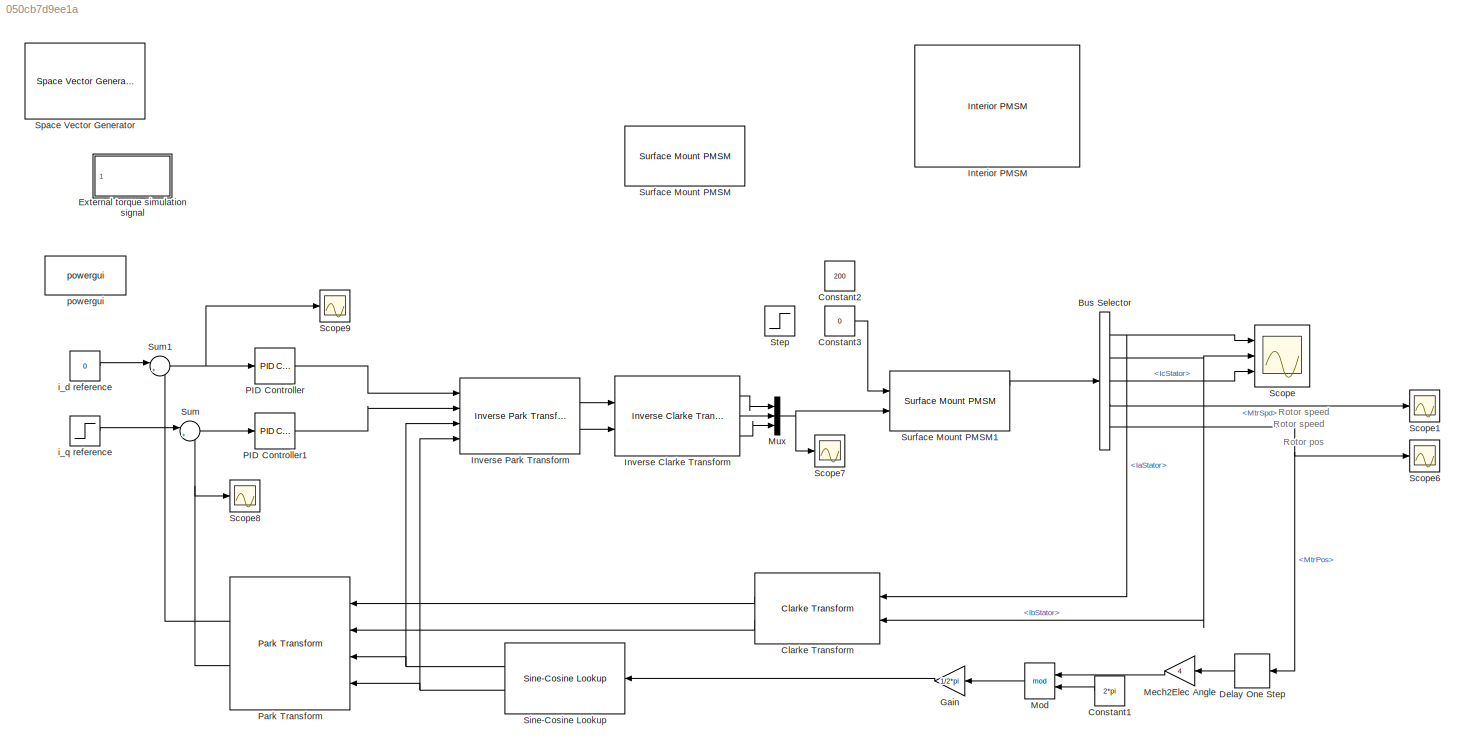
MODEL slx_050cb7d9ee1a
KIND model
CONFIG AbsTol = auto
CONFIG EnableMultiTasking = off
CONFIG FixedStep = 1e-4
CONFIG MaxStep = auto
CONFIG MinStep = auto
CONFIG RelTol = 1e-3
CONFIG SampleTimeConstraint = Unconstrained
CONFIG SolverName = FixedStepAuto
CONFIG StartTime = 0.0
CONFIG StopTime = 5
BLOCK [BusSelector] Bus Selector
  OutputSignals = IaStator,IbStator,IcStator,MtrSpd,MtrPos
  Ports = [1, 5]
BLOCK [Reference] Clarke Transform  REF=mcbcontrolslib/Clarke Transform
  NameLocation = top
  Ports = [2, 2]
  SourceBlock = mcbcontrolslib/Clarke Transform
  SourceProductBaseCode = MT
  SourceType = Clarke Transform
BLOCK [Constant] Constant1
  NameLocation = top
  Value = 2*pi
BLOCK [Constant] Constant2
  Value = 200
BLOCK [Constant] Constant3
  Value = 0
BLOCK [Delay] Delay One Step
  DelayLength = 1
  InputPortMap = u0
  NameLocation = top
  Ports = [1, 1]
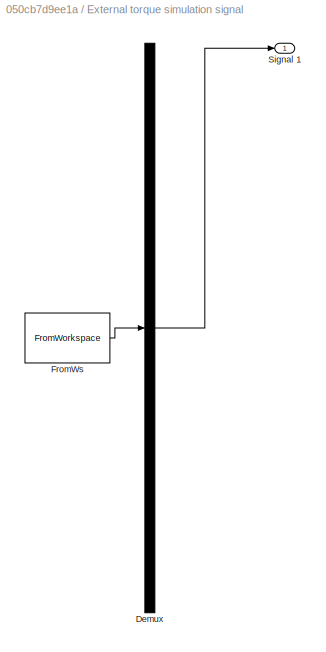
BLOCK [SubSystem] External torque simulation signal
  ClipboardFcn = sigbuilder_block('clipboard');
  CloseFcn = sigbuilder_block('close');
  ContinueFcn = sigbuilder_block('continue')
  CopyFcn = sigbuilder_block('copy');
  DeleteFcn = sigbuilder_block('delete');
  LoadFcn = sigbuilder_block('load');
  MaskHideContents = on
  ModelCloseFcn = sigbuilder_block('modelClose');
  NameChangeFcn = sigbuilder_block('namechange');
  OpenFcn = sigbuilder_block('open',[88.5 525 777 491.25 ]);
  PauseFcn = sigbuilder_block('pause')
  Ports = [0, 1]
  PreSaveFcn = sigbuilder_block('preSave');
  RequestExecContextInheritance = off
  StartFcn = sigbuilder_block('start');
  StopFcn = sigbuilder_block('stop');
  Tag = STV Subsys
BLOCK [Demux] External torque simulation signal/Demux
  DisplayOption = none
  Outputs = 1
  Ports = [1, 1]
  Tag = STV Demux
BLOCK [FromWorkspace] External torque simulation signal/FromWs
  Tag = STV FromWs
  VariableName = tuvar
BLOCK [Outport] External torque simulation signal/Signal 1
  Tag = STV Outport
BLOCK [Gain] Gain
  Gain = 1/2*pi
  NameLocation = top
BLOCK [Reference] Interior PMSM  REF=autolibpmsminterior/Interior PMSM
  Ports = [2, 3]
  SourceBlock = autolibpmsminterior/Interior PMSM
  SourceProductBaseCode = PW,MT,UV,VE,VP
  SourceType = Interior PMSM
BLOCK [Reference] Inverse Clarke Transform  REF=mcbcontrolslib/Inverse Clarke Transform
  Ports = [2, 3]
  SourceBlock = mcbcontrolslib/Inverse Clarke Transform
  SourceProductBaseCode = MT
  SourceType = Inverse Clarke Transform
BLOCK [Reference] Inverse Park Transform  REF=mcbcontrolslib/Inverse Park Transform
  Ports = [4, 2]
  SourceBlock = mcbcontrolslib/Inverse Park Transform
  SourceProductBaseCode = MT
  SourceType = Inverse Park Transform
BLOCK [Gain] Mech2Elec Angle
  Gain = 4
  NameLocation = top
BLOCK [Math] Mod
  NameLocation = top
  Operator = mod
  Ports = [2, 1]
BLOCK [Mux] Mux
  DisplayOption = bar
  Inputs = 3
  Ports = [3, 1]
BLOCK [Reference] PID Controller  REF=pid_lib/PID Controller
  Ports = [1, 1]
  SourceBlock = pid_lib/PID Controller
  SourceProductBaseCode = SL
  SourceType = PID 1dof
BLOCK [Reference] PID Controller1  REF=pid_lib/PID Controller
  Ports = [1, 1]
  SourceBlock = pid_lib/PID Controller
  SourceProductBaseCode = SL
  SourceType = PID 1dof
BLOCK [Reference] Park Transform  REF=mcbcontrolslib/Park Transform
  NameLocation = top
  Ports = [4, 2]
  SourceBlock = mcbcontrolslib/Park Transform
  SourceProductBaseCode = MT
  SourceType = Park Transform
BLOCK [Scope] Scope
  Floating = off
  NumInputPorts = 3
  Ports = [3]
  ScopeSpecificationString = Simulink.scopes.TimeScopeBlockCfg('CurrentConfiguration', extmgr.ConfigurationSet(extmgr.Configuration('Core','General UI',true),extmgr.Configuration('Core','Source UI',true),extmgr.Configuration('Sources','WiredSimulink',true),extmgr.Configuration('Visuals','Time Domain',true,'SerializedDisplays',{struct('MinYLimReal','-5.90803','MaxYLimReal','4.94568','YLabelReal','','MinYLimMag','0.00000','MaxY...<+1429ch>
BLOCK [Scope] Scope1
  Floating = off
  NumInputPorts = 1
  Ports = [1]
  ScopeSpecificationString = Simulink.scopes.TimeScopeBlockCfg('CurrentConfiguration', extmgr.ConfigurationSet(extmgr.Configuration('Core','General UI',true),extmgr.Configuration('Core','Source UI',true),extmgr.Configuration('Sources','WiredSimulink',true,'DataLoggingVariableName','ScopeData1'),extmgr.Configuration('Visuals','Time Domain',true,'PlotType','Line','SerializedDisplays',{struct('MinYLimReal','-27.53753','MaxYLimRe...<+1552ch>
BLOCK [Scope] Scope6
  Floating = off
  NumInputPorts = 1
  Ports = [1]
  ScopeSpecificationString = Simulink.scopes.TimeScopeBlockCfg('CurrentConfiguration', extmgr.ConfigurationSet(extmgr.Configuration('Core','General UI',true),extmgr.Configuration('Core','Source UI',true),extmgr.Configuration('Sources','WiredSimulink',true,'DataLoggingVariableName','ScopeData1'),extmgr.Configuration('Visuals','Time Domain',true,'SerializedDisplays',{struct('MinYLimReal','-3.92644','MaxYLimReal','3.92675','YLab...<+1441ch>
BLOCK [Scope] Scope7
  Floating = off
  NumInputPorts = 1
  Ports = [1]
  ScopeSpecificationString = Simulink.scopes.TimeScopeBlockCfg('CurrentConfiguration', extmgr.ConfigurationSet(extmgr.Configuration('Core','General UI',true),extmgr.Configuration('Core','Source UI',true),extmgr.Configuration('Sources','WiredSimulink',true,'DataLoggingVariableName','ScopeData2'),extmgr.Configuration('Visuals','Time Domain',true,'SerializedDisplays',{struct('MinYLimReal','-2.18714','MaxYLimReal','2.05685','YLab...<+1462ch>
BLOCK [Scope] Scope8
  Floating = off
  NumInputPorts = 1
  Ports = [1]
  ScopeSpecificationString = Simulink.scopes.TimeScopeBlockCfg('CurrentConfiguration', extmgr.ConfigurationSet(extmgr.Configuration('Core','General UI',true),extmgr.Configuration('Core','Source UI',true),extmgr.Configuration('Sources','WiredSimulink',true,'DataLoggingVariableName','ScopeData3'),extmgr.Configuration('Visuals','Time Domain',true,'SerializedDisplays',{struct('MinYLimReal','4.74311','MaxYLimReal','4.7776','YLabel...<+1388ch>
BLOCK [Scope] Scope9
  Floating = off
  NumInputPorts = 1
  Ports = [1]
  ScopeSpecificationString = Simulink.scopes.TimeScopeBlockCfg('CurrentConfiguration', extmgr.ConfigurationSet(extmgr.Configuration('Core','General UI',true),extmgr.Configuration('Core','Source UI',true),extmgr.Configuration('Sources','WiredSimulink',true,'DataLoggingVariableName','ScopeData1'),extmgr.Configuration('Visuals','Time Domain',true,'SerializedDisplays',{struct('MinYLimReal','-8.84978','MaxYLimReal','9.40625','YLab...<+1412ch>
BLOCK [Reference] Sine-Cosine Lookup  REF=mcbcontrolslib/Sine-Cosine Lookup
  NameLocation = top
  Ports = [1, 2]
  SourceBlock = mcbcontrolslib/Sine-Cosine Lookup
  SourceProductBaseCode = MT
  SourceType = Sine-Cosine Lookup
BLOCK [Reference] Space Vector Generator  REF=mcbcontrolslib/Space Vector Generator
  Ports = [2, 3]
  SourceBlock = mcbcontrolslib/Space Vector Generator
  SourceProductBaseCode = MT
  SourceType = Space Vector Generator
BLOCK [Step] Step
  After = 0
  SampleTime = 0
  Time = 0.1
BLOCK [Sum] Sum
  Inputs = |+-
  Ports = [2, 1]
BLOCK [Sum] Sum1
  Inputs = |+-
  Ports = [2, 1]
BLOCK [Reference] Surface Mount PMSM  REF=autolibpmsmexterior/Surface Mount PMSM
  Ports = [2, 3]
  SourceBlock = autolibpmsmexterior/Surface Mount PMSM
  SourceProductBaseCode = PW,MT,UV,VE,VP
  SourceType = Surface Mount PMSM
BLOCK [Reference] Surface Mount PMSM1  REF=autolibpmsmexterior/Surface Mount PMSM
  Ports = [2, 3]
  SourceBlock = autolibpmsmexterior/Surface Mount PMSM
  SourceProductBaseCode = PW,MT,UV,VE,VP
  SourceType = Surface Mount PMSM
BLOCK [Constant] i_d reference
  Value = 0
BLOCK [Step] i_q reference
  After = 5
  OutDataTypeStr = Inherit: Inherit via back propagation
  SampleTime = 0
  Time = 0.1
BLOCK [Reference] powergui  REF=powerlib/powergui
  Ports = []
  Priority = 1
  SourceBlock = powerlib/powergui
  SourceProductBaseCode = PS
  SourceType = PSB option menu block
ANNOTATION (root): Rotor pos
ANNOTATION (root): Rotor speed
NET Bus Selector:1 -> Clarke Transform:1, Scope:1
NET Bus Selector:2 -> Clarke Transform:2, Scope:2
LINE Bus Selector:3 -> Scope:3
LINE Bus Selector:4 -> Scope1:1
NET Bus Selector:5 -> Delay One Step:1, Scope6:1
LINE Clarke Transform:1 -> Park Transform:1
LINE Clarke Transform:2 -> Park Transform:2
LINE Constant1:1 -> Mod:2
LINE Constant3:1 -> Surface Mount PMSM1:1
LINE Delay One Step:1 -> Mech2Elec Angle:1
LINE External torque simulation signal/Demux:1 -> External torque simulation signal/Signal 1:1
LINE External torque simulation signal/FromWs:1 -> External torque simulation signal/Demux:1
LINE Gain:1 -> Sine-Cosine Lookup:1
LINE Inverse Clarke Transform:1 -> Mux:1
LINE Inverse Clarke Transform:2 -> Mux:2
LINE Inverse Clarke Transform:3 -> Mux:3
LINE Inverse Park Transform:1 -> Inverse Clarke Transform:1
LINE Inverse Park Transform:2 -> Inverse Clarke Transform:2
LINE Mech2Elec Angle:1 -> Mod:1
LINE Mod:1 -> Gain:1
NET Mux:1 -> Scope7:1, Surface Mount PMSM1:2
LINE PID Controller1:1 -> Inverse Park Transform:2
LINE PID Controller:1 -> Inverse Park Transform:1
LINE Park Transform:1 -> Sum1:2
NET Park Transform:2 -> Scope8:1, Sum:2
NET Sine-Cosine Lookup:1 -> Inverse Park Transform:3, Park Transform:3
NET Sine-Cosine Lookup:2 -> Inverse Park Transform:4, Park Transform:4
NET Sum1:1 -> PID Controller:1, Scope9:1
LINE Sum:1 -> PID Controller1:1
LINE Surface Mount PMSM1:1 -> Bus Selector:1
LINE i_d reference:1 -> Sum1:1
LINE i_q reference:1 -> Sum:1
note: NET lines group one-source signal fan-out (src -> all destinations, sorted); 1:1 wires keep LINE
